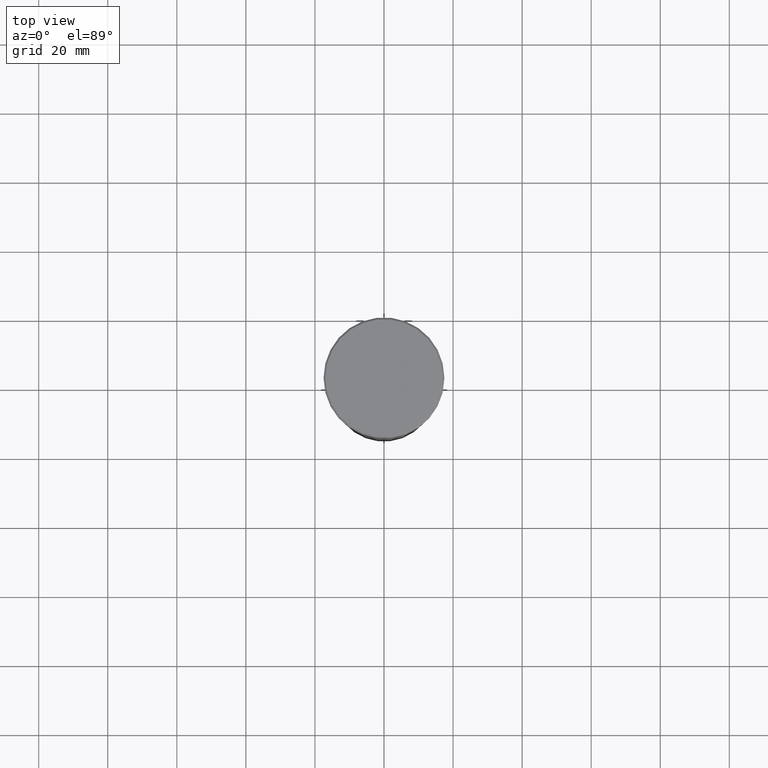
[diagram: clean part render]
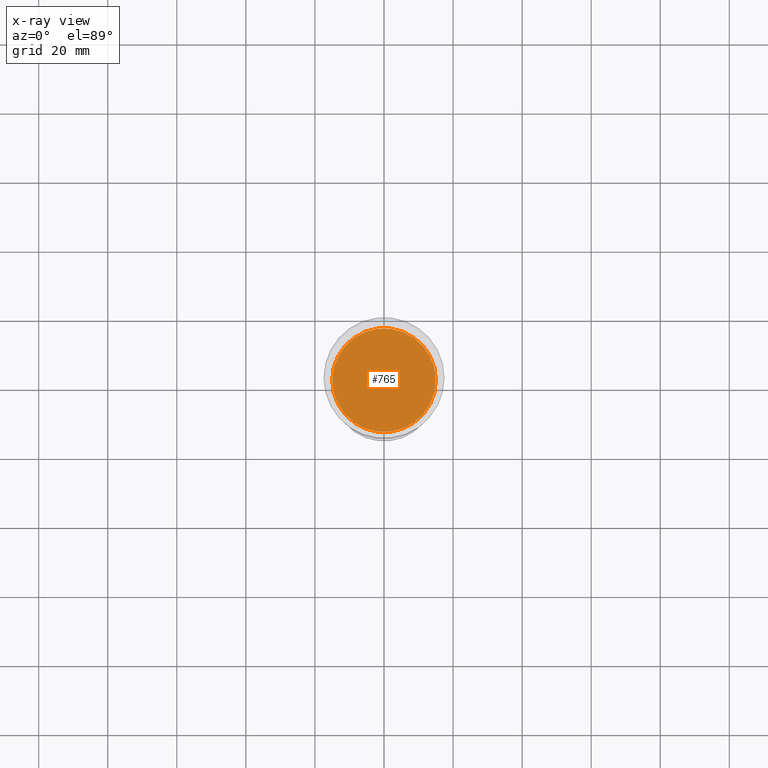
[diagram: x-ray — body ghosted, one internal face saturated and labeled with its STEP entity id]
A machine part, top view, then the same camera in x-ray: the body is ghosted and one INTERNAL B-rep face — a face not visible from any outside direction — is saturated and labeled: STEP entity #765.
In plain terms, the highlighted planar face has unit normal (0, 0, -1).
Its self-contained STEP definition (entity closure, byte-faithful):
#22 = DIRECTION ( 'NONE',  ( 0.000000000000000000, 0.000000000000000000, -1.000000000000000000 ) ) ;
#34 = DIRECTION ( 'NONE',  ( 0.000000000000000000, 0.000000000000000000, -1.000000000000000000 ) ) ;
#82 = FACE_OUTER_BOUND ( 'NONE', #244, .T. ) ;
#219 = CARTESIAN_POINT ( 'NONE',  ( 0.000000000000000000, 0.000000000000000000, -41.99999999999999289 ) ) ;
#224 = AXIS2_PLACEMENT_3D ( 'NONE', #415, #698, #761 ) ;
#237 = CARTESIAN_POINT ( 'NONE',  ( 0.000000000000000000, 0.000000000000000000, -41.99999999999999289 ) ) ;
#244 = EDGE_LOOP ( 'NONE', ( #1094, #875 ) ) ;
#332 = PLANE ( 'NONE',  #224 ) ;
#396 = DIRECTION ( 'NONE',  ( -1.000000000000000000, 0.000000000000000000, 0.000000000000000000 ) ) ;
#400 = VERTEX_POINT ( 'NONE', #468 ) ;
#402 = AXIS2_PLACEMENT_3D ( 'NONE', #237, #22, #1014 ) ;
#415 = CARTESIAN_POINT ( 'NONE',  ( 0.000000000000000000, 0.000000000000000000, -41.99999999999999289 ) ) ;
#468 = CARTESIAN_POINT ( 'NONE',  ( 15.00000000000000000, 0.000000000000000000, -41.99999999999999289 ) ) ;
#524 = CARTESIAN_POINT ( 'NONE',  ( -15.00000000000000000, 1.836970198721029194E-15, -41.99999999999999289 ) ) ;
#557 = CIRCLE ( 'NONE', #1004, 15.00000000000000000 ) ;
#621 = EDGE_CURVE ( 'NONE', #925, #400, #557, .T. ) ;
#698 = DIRECTION ( 'NONE',  ( 0.000000000000000000, 0.000000000000000000, -1.000000000000000000 ) ) ;
#761 = DIRECTION ( 'NONE',  ( -1.000000000000000000, 0.000000000000000000, -0.000000000000000000 ) ) ;
#765 = ADVANCED_FACE ( 'NONE', ( #82 ), #332, .T. ) ;
#875 = ORIENTED_EDGE ( 'NONE', *, *, #621, .T. ) ;
#909 = CIRCLE ( 'NONE', #402, 15.00000000000000000 ) ;
#925 = VERTEX_POINT ( 'NONE', #524 ) ;
#1004 = AXIS2_PLACEMENT_3D ( 'NONE', #219, #34, #396 ) ;
#1014 = DIRECTION ( 'NONE',  ( -1.000000000000000000, 0.000000000000000000, 0.000000000000000000 ) ) ;
#1094 = ORIENTED_EDGE ( 'NONE', *, *, #1127, .T. ) ;
#1127 = EDGE_CURVE ( 'NONE', #400, #925, #909, .T. ) ;